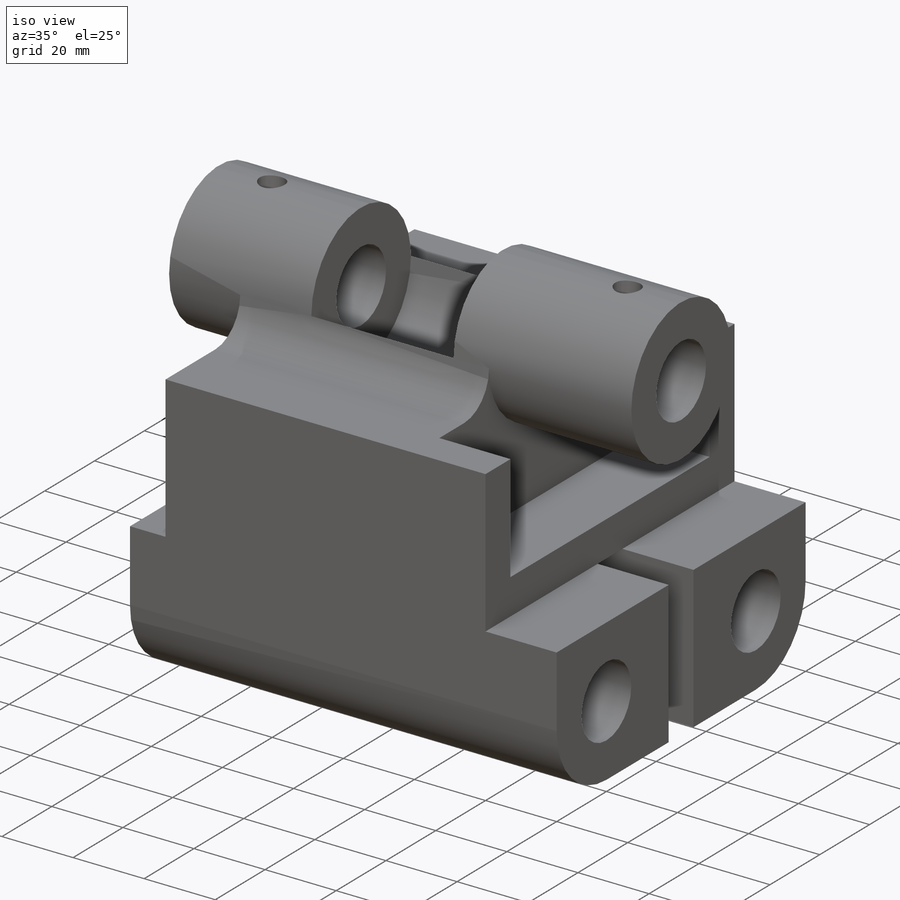
[diagram: iso view]
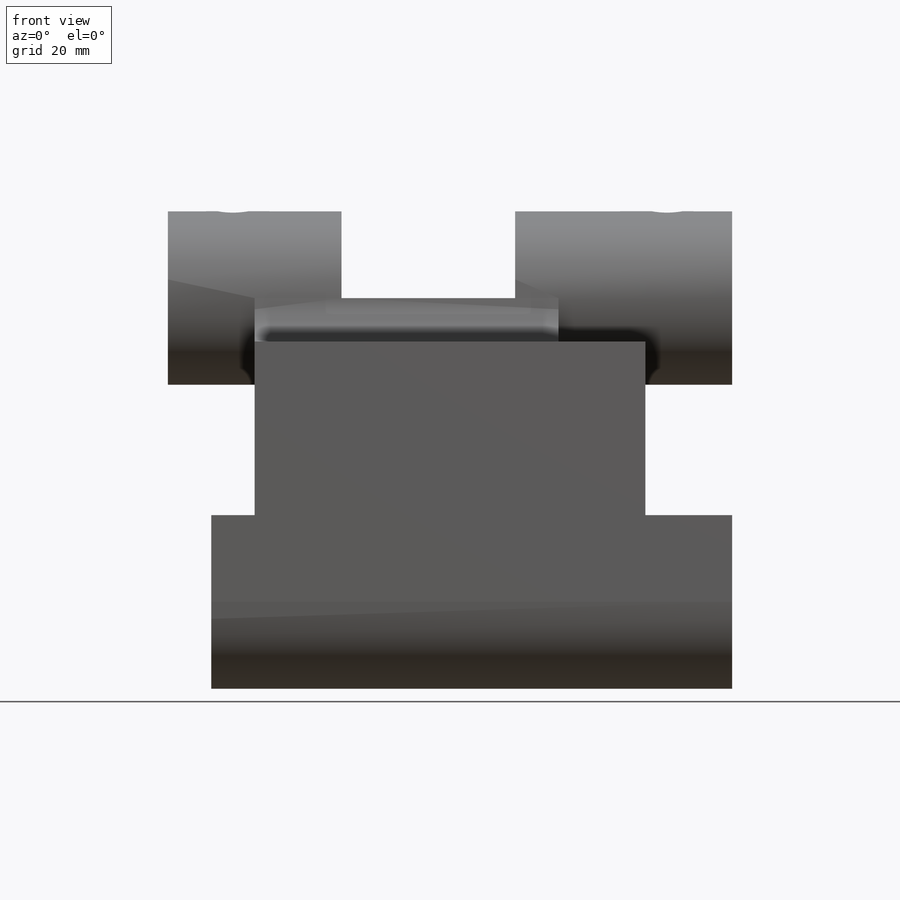
[diagram: front view]
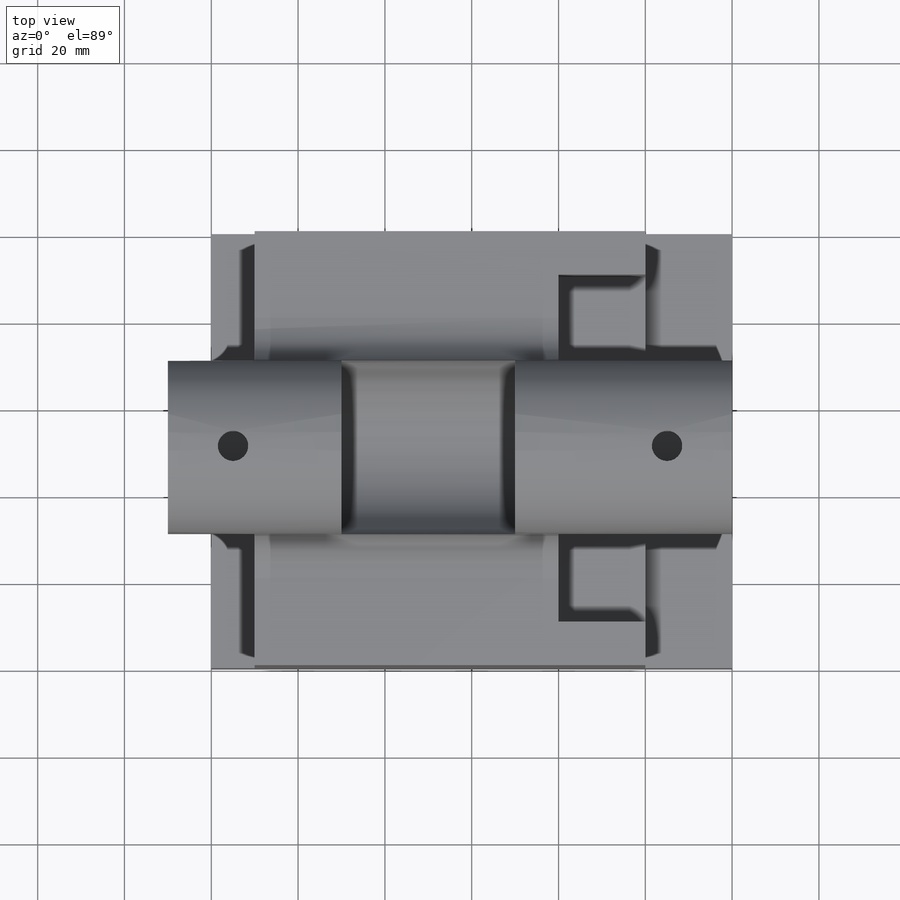
[diagram: top view]
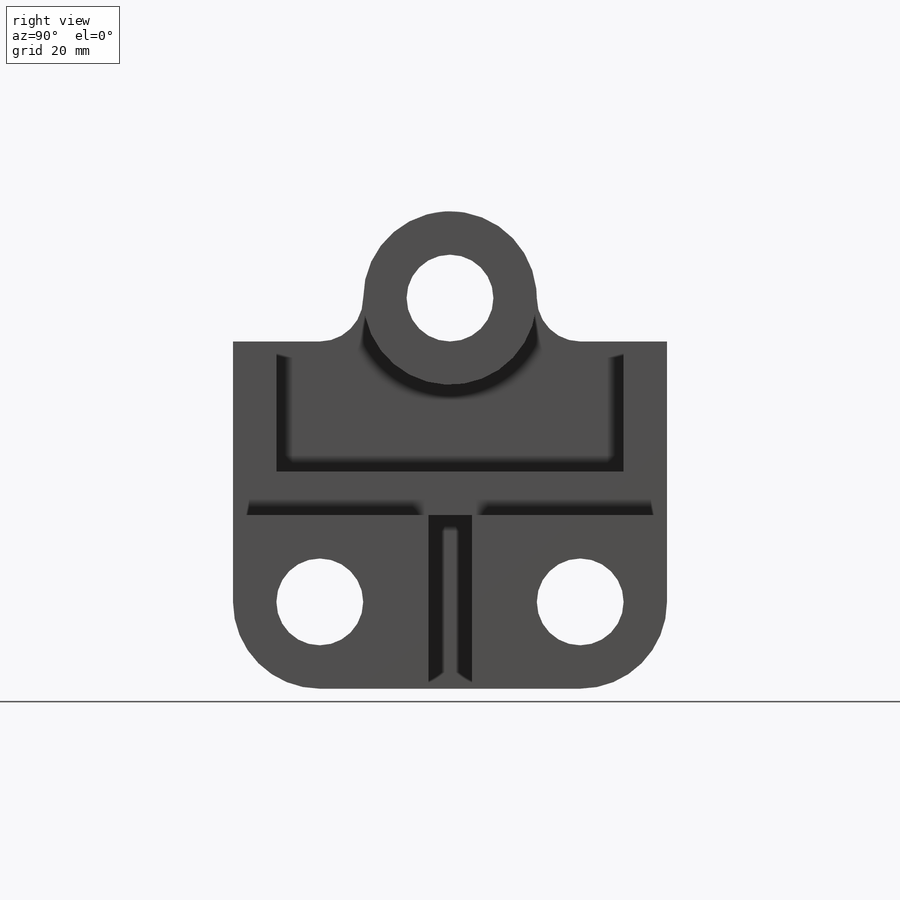
[diagram: right view]
SOLIDWORKS PART (.sldprt)
format: sldprt  version: not decoded by parser v0  size: 696,832 bytes
history: native  units: mm
features: sketch x31, cut_extrude x20, extrude x11, plane x3, material x1 (+13 scaffold rows collapsed)
feature tree (79):
  scaffold x13  (default folders/planes/origin — collapsed)
  material  "Material <not specified>"
  sketch  "Sketch1"  dims[D1=120.0mm D2=100.0mm]
  extrude  "Boss-Extrude1"  Depth=100mm
  sketch  "Sketch2"  dims[D1=20.0mm D2=20.0mm D5=20.0mm D3=20.0mm D4=20.0mm D6=80.0mm D7=20.0mm D8=20.0mm D9=80.0mm]
  cut_extrude  "Cut-Extrude2"  Depth=135mm
  sketch  "Sketch3"  dims[c1.D1=80.0mm c1.D2=20.0mm c2.D2=90.0deg c2.D3=20.0mm c2.D4=20.0mm c2.D5=20.0mm]
  cut_extrude  "Cut-Extrude3"  Depth=135mm
  sketch  "Sketch4"  dims[D5=40.0mm D1=10.0mm D2=10.0mm D3=10.0mm D4=10.0mm D6=20.0mm D7=90.0mm]
  cut_extrude  "Cut-Extrude4"  Depth=135mm
  sketch  "Sketch5"  dims[D1=40.0mm]
  extrude  "Boss-Extrude2"  Depth=120mm
  sketch  "Sketch6"  dims[D1=40.0mm]
  extrude  "Boss-Extrude3"  Depth=10mm
  sketch  "Sketch7"  dims[D1=20.0mm]
  cut_extrude  "Cut-Extrude5"  Depth=40mm
  plane  "Plane1"  Offset=30mm
  sketch  "Sketch8"  dims[D1=40.0mm]
  cut_extrude  "Cut-Extrude6"  Depth=40mm
  sketch  "Sketch9"  dims[D1=20.0mm]
  cut_extrude  "Cut-Extrude7"  Depth=76mm
  sketch  "Sketch10"  dims[D1=7.0mm D2=7.0mm D3=15.0mm D4=50.0mm D5=50.0mm D6=15.0mm]
  cut_extrude  "Cut-Extrude8"  Depth=154mm
  sketch  "Sketch11"  dims[D1=20.0mm D2=40.0mm]
  extrude  "Boss-Extrude5"  Depth=40mm
  sketch  "Sketch12"  dims[D1=20.0mm D2=40.0mm]
  extrude  "Boss-Extrude6"  Depth=50mm
  sketch  "Sketch13"  dims[c1.D1=~6.933033mm c1.D2=7.0mm c2.D1=0.0mm]
  extrude  "Boss-Extrude7"  Depth=50mm
  sketch  "Sketch15"  dims[D1=20.0mm D2=20.0mm D3=20.0mm D4=20.0mm D5=20.0mm D6=20.0mm]
  cut_extrude  "Cut-Extrude11"  Depth=152mm
  sketch  "Sketch16"  dims[c1.D1=10.0mm c1.D2=20.0mm c2.D1=10.0mm c2.D2=20.0mm c2.D3=10.0mm c2.D4=20.0mm c3.D1=10.0mm c3.D2=10.0mm c3.D3=20.0mm c3.D4=10.0mm c3.D5=10.0mm]
  cut_extrude  "Cut-Extrude14"  Depth=30mm
  sketch  "Sketch17"  dims[D1=40.0mm D2=20.0mm]
  extrude  "Boss-Extrude8"  Depth=20mm
  sketch  "Sketch18"  dims[D1=40.0mm D2=20.0mm]
  extrude  "Boss-Extrude9"  Depth=20mm
  sketch  "Sketch19"  dims[D1=10.0mm D2=30.0mm]
  extrude  "Boss-Extrude10"  Depth=90mm
  sketch  "Sketch20"
  extrude  "Boss-Extrude11"  Depth=10mm
  sketch  "Sketch22"  dims[D1=10.0mm]
  cut_extrude  "Cut-Extrude15"  Depth=10mm
  sketch  "Sketch23"  dims[D1=10.0mm]
  cut_extrude  "Cut-Extrude16"  Depth=20mm
  sketch  "Sketch24"  dims[D1=10.0mm D2=30.0mm]
  cut_extrude  "Cut-Extrude19"  Depth=20mm
  sketch  "Sketch25"  dims[D1=7.0mm D7=7.0mm D2=15.0mm D3=50.0mm D4=50.0mm D5=15.0mm D6=50.0mm]
  cut_extrude  "Cut-Extrude20"  Depth=220mm
  sketch  "Sketch26"  dims[D1=7.0mm D2=7.0mm]
  extrude  "Boss-Extrude15"  Depth=85mm
  sketch  "Sketch27"  dims[D1=40.0mm D2=~50.041929mm]
  cut_extrude  "Cut-Extrude21"  Depth=85mm
  sketch  "Sketch29"
  cut_extrude  "Cut-Extrude22"  Depth=85mm
  sketch  "Sketch30"
  cut_extrude  "Cut-Extrude23"  Depth=85mm
  sketch  "Sketch31"  dims[D1=20.0mm]
  cut_extrude  "Cut-Extrude24"  Depth=149mm
  plane  "Plane2"  Offset=30mm
  plane  "Plane4"  Offset=50mm
  sketch  "Sketch33"  dims[c1.D1=~24.451308mm c1.D2=7.0mm c2.D1=50.0mm c2.D3=20.0mm]
  cut_extrude  "Cut-Extrude28"  Depth=20mm
  sketch  "Sketch34"  dims[c1.D1=10.0mm c1.D2=45.0mm c2.D1=10.0mm c2.D2=50.0mm c3.D1=10.0mm c3.D2=45.0mm c3.D3=10.0mm c4.D3=~179.939942deg c5.D3=10.0mm c6.D3=~0.060058deg c6.D4=39.999mm]
  cut_extrude  "Cut-Extrude33"  Depth=30mm
  sketch  "Sketch35"  dims[D1=10.0mm D2=45.0mm D3=50.0mm]
  cut_extrude  "Cut-Extrude34"  Depth=40mm
decode coverage: 59 of 62 modeling features carry decoded parameters
note: ~ marks probable driven/reference dimensions
note: suppression state not decoded; provenance and decode notes live in map.json
